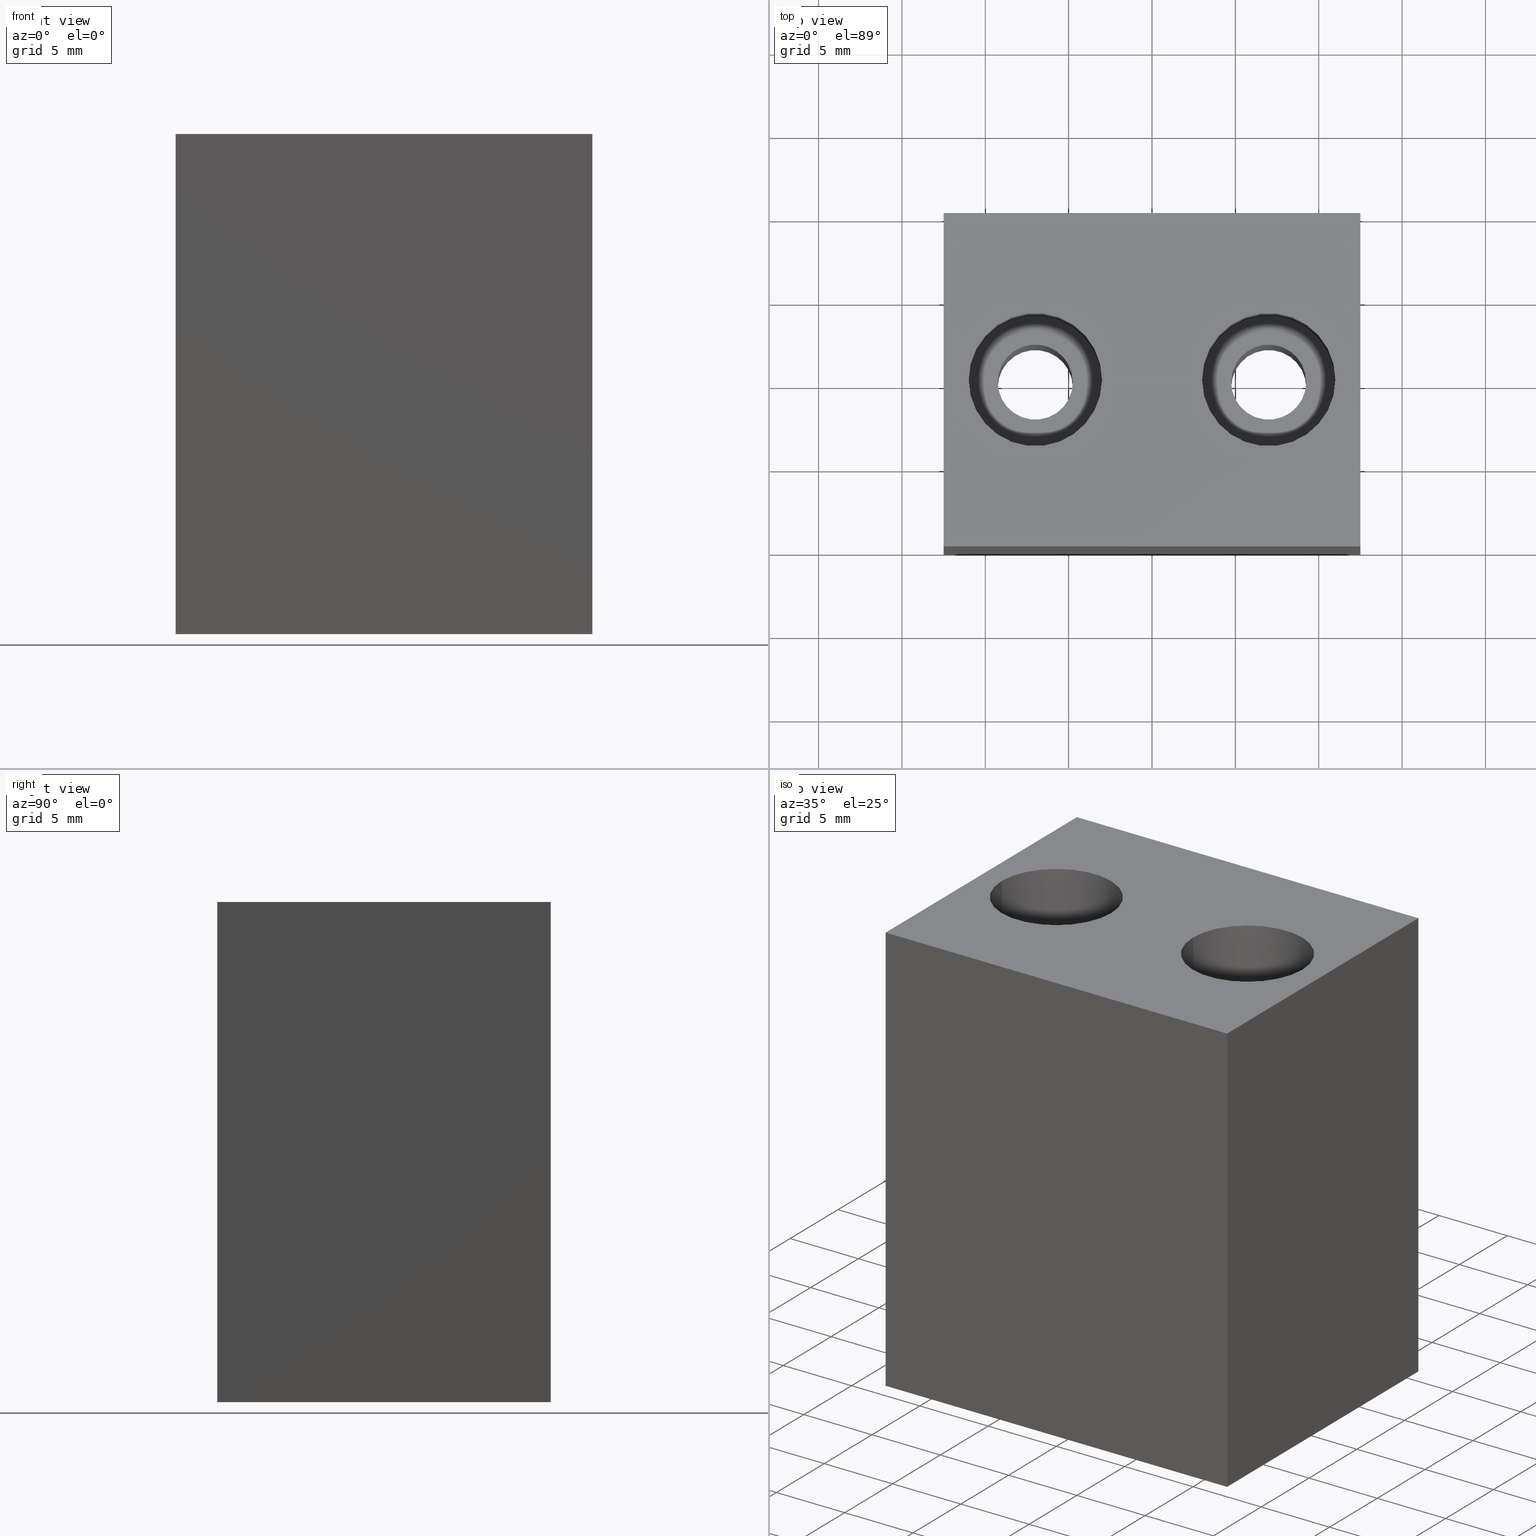
[diagram: canonical four-view strip — front | top / right | iso, engineering-drawing reading convention]
A machine part, canonical four-view strip (front | top / right | iso — engineering-drawing reading convention). The complete STEP part file that produces these views, byte-faithful:
ISO-10303-21;
HEADER;
/* Generated by software containing ST-Developer
 * from STEP Tools, Inc. (www.steptools.com) 
 */

FILE_DESCRIPTION(
/* description */ ('WKZ-0456'),
/* implementation_level */ '2;1');

FILE_NAME(
/* name */ 'E_3_02_14_00_00_WKZ-0456.stp',
/* time_stamp */ '2025-11-21T11:15:23+01:00',
/* author */ ('d.fischer'),
/* organization */ (''),
/* preprocessor_version */ 'ST-DEVELOPER v20',
/* originating_system */ 'Autodesk Inventor 2025',
/* authorisation */ '');

FILE_SCHEMA (('AUTOMOTIVE_DESIGN { 1 0 10303 214 3 1 1 }'));
ENDSEC;

DATA;
#10=MECHANICAL_DESIGN_GEOMETRIC_PRESENTATION_REPRESENTATION('',(#13),#450);
#11=SHAPE_REPRESENTATION_RELATIONSHIP('SRR','None',#457,#12);
#12=ADVANCED_BREP_SHAPE_REPRESENTATION('',(#14),#449);
#13=STYLED_ITEM('',(#466),#14);
#14=MANIFOLD_SOLID_BREP('Volumenk\X\F6rper1',#253);
#15=FACE_BOUND('',#51,.T.);
#16=FACE_BOUND('',#54,.T.);
#17=FACE_BOUND('',#57,.T.);
#18=FACE_BOUND('',#60,.T.);
#19=FACE_BOUND('',#68,.T.);
#20=FACE_BOUND('',#69,.T.);
#21=FACE_BOUND('',#71,.T.);
#22=FACE_BOUND('',#72,.T.);
#23=PLANE('',#279);
#24=PLANE('',#284);
#25=PLANE('',#289);
#26=PLANE('',#294);
#27=PLANE('',#298);
#28=PLANE('',#299);
#29=PLANE('',#300);
#30=PLANE('',#301);
#31=PLANE('',#302);
#32=PLANE('',#303);
#33=FACE_OUTER_BOUND('',#49,.T.);
#34=FACE_OUTER_BOUND('',#50,.T.);
#35=FACE_OUTER_BOUND('',#52,.T.);
#36=FACE_OUTER_BOUND('',#53,.T.);
#37=FACE_OUTER_BOUND('',#55,.T.);
#38=FACE_OUTER_BOUND('',#56,.T.);
#39=FACE_OUTER_BOUND('',#58,.T.);
#40=FACE_OUTER_BOUND('',#59,.T.);
#41=FACE_OUTER_BOUND('',#61,.T.);
#42=FACE_OUTER_BOUND('',#62,.T.);
#43=FACE_OUTER_BOUND('',#63,.T.);
#44=FACE_OUTER_BOUND('',#64,.T.);
#45=FACE_OUTER_BOUND('',#65,.T.);
#46=FACE_OUTER_BOUND('',#66,.T.);
#47=FACE_OUTER_BOUND('',#67,.T.);
#48=FACE_OUTER_BOUND('',#70,.T.);
#49=EDGE_LOOP('',(#171,#172,#173,#174));
#50=EDGE_LOOP('',(#175));
#51=EDGE_LOOP('',(#176));
#52=EDGE_LOOP('',(#177,#178,#179,#180));
#53=EDGE_LOOP('',(#181));
#54=EDGE_LOOP('',(#182));
#55=EDGE_LOOP('',(#183,#184,#185,#186));
#56=EDGE_LOOP('',(#187));
#57=EDGE_LOOP('',(#188));
#58=EDGE_LOOP('',(#189,#190,#191,#192));
#59=EDGE_LOOP('',(#193));
#60=EDGE_LOOP('',(#194));
#61=EDGE_LOOP('',(#195,#196,#197,#198));
#62=EDGE_LOOP('',(#199,#200,#201,#202));
#63=EDGE_LOOP('',(#203,#204,#205,#206));
#64=EDGE_LOOP('',(#207,#208,#209,#210));
#65=EDGE_LOOP('',(#211,#212,#213,#214));
#66=EDGE_LOOP('',(#215,#216,#217,#218));
#67=EDGE_LOOP('',(#219,#220,#221,#222));
#68=EDGE_LOOP('',(#223));
#69=EDGE_LOOP('',(#224));
#70=EDGE_LOOP('',(#225,#226,#227,#228));
#71=EDGE_LOOP('',(#229));
#72=EDGE_LOOP('',(#230));
#73=LINE('',#385,#91);
#74=LINE('',#394,#92);
#75=LINE('',#403,#93);
#76=LINE('',#412,#94);
#77=LINE('',#418,#95);
#78=LINE('',#420,#96);
#79=LINE('',#424,#97);
#80=LINE('',#426,#98);
#81=LINE('',#428,#99);
#82=LINE('',#429,#100);
#83=LINE('',#432,#101);
#84=LINE('',#434,#102);
#85=LINE('',#435,#103);
#86=LINE('',#438,#104);
#87=LINE('',#440,#105);
#88=LINE('',#441,#106);
#89=LINE('',#443,#107);
#90=LINE('',#444,#108);
#91=VECTOR('',#310,3.);
#92=VECTOR('',#321,3.);
#93=VECTOR('',#332,4.);
#94=VECTOR('',#343,4.);
#95=VECTOR('',#352,2.25);
#96=VECTOR('',#355,2.25);
#97=VECTOR('',#358,10.);
#98=VECTOR('',#359,10.);
#99=VECTOR('',#360,10.);
#100=VECTOR('',#361,10.);
#101=VECTOR('',#364,10.);
#102=VECTOR('',#365,10.);
#103=VECTOR('',#366,10.);
#104=VECTOR('',#369,10.);
#105=VECTOR('',#370,10.);
#106=VECTOR('',#371,10.);
#107=VECTOR('',#374,10.);
#108=VECTOR('',#375,10.);
#109=CIRCLE('',#277,3.);
#110=CIRCLE('',#278,3.);
#111=CIRCLE('',#280,2.25);
#112=CIRCLE('',#282,3.);
#113=CIRCLE('',#283,3.);
#114=CIRCLE('',#285,2.25);
#115=CIRCLE('',#287,4.);
#116=CIRCLE('',#288,4.);
#117=CIRCLE('',#290,2.25);
#118=CIRCLE('',#292,4.);
#119=CIRCLE('',#293,4.);
#120=CIRCLE('',#295,2.25);
#121=VERTEX_POINT('',#382);
#122=VERTEX_POINT('',#384);
#123=VERTEX_POINT('',#388);
#124=VERTEX_POINT('',#391);
#125=VERTEX_POINT('',#393);
#126=VERTEX_POINT('',#397);
#127=VERTEX_POINT('',#400);
#128=VERTEX_POINT('',#402);
#129=VERTEX_POINT('',#406);
#130=VERTEX_POINT('',#409);
#131=VERTEX_POINT('',#411);
#132=VERTEX_POINT('',#415);
#133=VERTEX_POINT('',#422);
#134=VERTEX_POINT('',#423);
#135=VERTEX_POINT('',#425);
#136=VERTEX_POINT('',#427);
#137=VERTEX_POINT('',#431);
#138=VERTEX_POINT('',#433);
#139=VERTEX_POINT('',#437);
#140=VERTEX_POINT('',#439);
#141=EDGE_CURVE('',#121,#121,#109,.T.);
#142=EDGE_CURVE('',#121,#122,#73,.T.);
#143=EDGE_CURVE('',#122,#122,#110,.T.);
#144=EDGE_CURVE('',#123,#123,#111,.T.);
#145=EDGE_CURVE('',#124,#124,#112,.T.);
#146=EDGE_CURVE('',#124,#125,#74,.T.);
#147=EDGE_CURVE('',#125,#125,#113,.T.);
#148=EDGE_CURVE('',#126,#126,#114,.T.);
#149=EDGE_CURVE('',#127,#127,#115,.T.);
#150=EDGE_CURVE('',#127,#128,#75,.T.);
#151=EDGE_CURVE('',#128,#128,#116,.T.);
#152=EDGE_CURVE('',#129,#129,#117,.T.);
#153=EDGE_CURVE('',#130,#130,#118,.T.);
#154=EDGE_CURVE('',#130,#131,#76,.T.);
#155=EDGE_CURVE('',#131,#131,#119,.T.);
#156=EDGE_CURVE('',#132,#132,#120,.T.);
#157=EDGE_CURVE('',#132,#123,#77,.T.);
#158=EDGE_CURVE('',#129,#126,#78,.T.);
#159=EDGE_CURVE('',#133,#134,#79,.T.);
#160=EDGE_CURVE('',#134,#135,#80,.T.);
#161=EDGE_CURVE('',#136,#135,#81,.T.);
#162=EDGE_CURVE('',#133,#136,#82,.T.);
#163=EDGE_CURVE('',#137,#133,#83,.T.);
#164=EDGE_CURVE('',#138,#136,#84,.T.);
#165=EDGE_CURVE('',#137,#138,#85,.T.);
#166=EDGE_CURVE('',#139,#137,#86,.T.);
#167=EDGE_CURVE('',#140,#138,#87,.T.);
#168=EDGE_CURVE('',#139,#140,#88,.T.);
#169=EDGE_CURVE('',#134,#139,#89,.T.);
#170=EDGE_CURVE('',#135,#140,#90,.T.);
#171=ORIENTED_EDGE('',*,*,#141,.F.);
#172=ORIENTED_EDGE('',*,*,#142,.T.);
#173=ORIENTED_EDGE('',*,*,#143,.F.);
#174=ORIENTED_EDGE('',*,*,#142,.F.);
#175=ORIENTED_EDGE('',*,*,#143,.T.);
#176=ORIENTED_EDGE('',*,*,#144,.F.);
#177=ORIENTED_EDGE('',*,*,#145,.F.);
#178=ORIENTED_EDGE('',*,*,#146,.T.);
#179=ORIENTED_EDGE('',*,*,#147,.F.);
#180=ORIENTED_EDGE('',*,*,#146,.F.);
#181=ORIENTED_EDGE('',*,*,#147,.T.);
#182=ORIENTED_EDGE('',*,*,#148,.F.);
#183=ORIENTED_EDGE('',*,*,#149,.F.);
#184=ORIENTED_EDGE('',*,*,#150,.T.);
#185=ORIENTED_EDGE('',*,*,#151,.F.);
#186=ORIENTED_EDGE('',*,*,#150,.F.);
#187=ORIENTED_EDGE('',*,*,#151,.T.);
#188=ORIENTED_EDGE('',*,*,#152,.F.);
#189=ORIENTED_EDGE('',*,*,#153,.F.);
#190=ORIENTED_EDGE('',*,*,#154,.T.);
#191=ORIENTED_EDGE('',*,*,#155,.F.);
#192=ORIENTED_EDGE('',*,*,#154,.F.);
#193=ORIENTED_EDGE('',*,*,#155,.T.);
#194=ORIENTED_EDGE('',*,*,#156,.F.);
#195=ORIENTED_EDGE('',*,*,#156,.T.);
#196=ORIENTED_EDGE('',*,*,#157,.T.);
#197=ORIENTED_EDGE('',*,*,#144,.T.);
#198=ORIENTED_EDGE('',*,*,#157,.F.);
#199=ORIENTED_EDGE('',*,*,#152,.T.);
#200=ORIENTED_EDGE('',*,*,#158,.T.);
#201=ORIENTED_EDGE('',*,*,#148,.T.);
#202=ORIENTED_EDGE('',*,*,#158,.F.);
#203=ORIENTED_EDGE('',*,*,#159,.T.);
#204=ORIENTED_EDGE('',*,*,#160,.T.);
#205=ORIENTED_EDGE('',*,*,#161,.F.);
#206=ORIENTED_EDGE('',*,*,#162,.F.);
#207=ORIENTED_EDGE('',*,*,#163,.T.);
#208=ORIENTED_EDGE('',*,*,#162,.T.);
#209=ORIENTED_EDGE('',*,*,#164,.F.);
#210=ORIENTED_EDGE('',*,*,#165,.F.);
#211=ORIENTED_EDGE('',*,*,#166,.T.);
#212=ORIENTED_EDGE('',*,*,#165,.T.);
#213=ORIENTED_EDGE('',*,*,#167,.F.);
#214=ORIENTED_EDGE('',*,*,#168,.F.);
#215=ORIENTED_EDGE('',*,*,#169,.T.);
#216=ORIENTED_EDGE('',*,*,#168,.T.);
#217=ORIENTED_EDGE('',*,*,#170,.F.);
#218=ORIENTED_EDGE('',*,*,#160,.F.);
#219=ORIENTED_EDGE('',*,*,#170,.T.);
#220=ORIENTED_EDGE('',*,*,#167,.T.);
#221=ORIENTED_EDGE('',*,*,#164,.T.);
#222=ORIENTED_EDGE('',*,*,#161,.T.);
#223=ORIENTED_EDGE('',*,*,#149,.T.);
#224=ORIENTED_EDGE('',*,*,#153,.T.);
#225=ORIENTED_EDGE('',*,*,#169,.F.);
#226=ORIENTED_EDGE('',*,*,#159,.F.);
#227=ORIENTED_EDGE('',*,*,#163,.F.);
#228=ORIENTED_EDGE('',*,*,#166,.F.);
#229=ORIENTED_EDGE('',*,*,#141,.T.);
#230=ORIENTED_EDGE('',*,*,#145,.T.);
#231=CYLINDRICAL_SURFACE('',#276,3.);
#232=CYLINDRICAL_SURFACE('',#281,3.);
#233=CYLINDRICAL_SURFACE('',#286,4.);
#234=CYLINDRICAL_SURFACE('',#291,4.);
#235=CYLINDRICAL_SURFACE('',#296,2.25);
#236=CYLINDRICAL_SURFACE('',#297,2.25);
#237=ADVANCED_FACE('',(#33),#231,.F.);
#238=ADVANCED_FACE('',(#34,#15),#23,.T.);
#239=ADVANCED_FACE('',(#35),#232,.F.);
#240=ADVANCED_FACE('',(#36,#16),#24,.T.);
#241=ADVANCED_FACE('',(#37),#233,.F.);
#242=ADVANCED_FACE('',(#38,#17),#25,.T.);
#243=ADVANCED_FACE('',(#39),#234,.F.);
#244=ADVANCED_FACE('',(#40,#18),#26,.T.);
#245=ADVANCED_FACE('',(#41),#235,.F.);
#246=ADVANCED_FACE('',(#42),#236,.F.);
#247=ADVANCED_FACE('',(#43),#27,.T.);
#248=ADVANCED_FACE('',(#44),#28,.T.);
#249=ADVANCED_FACE('',(#45),#29,.T.);
#250=ADVANCED_FACE('',(#46),#30,.T.);
#251=ADVANCED_FACE('',(#47,#19,#20),#31,.T.);
#252=ADVANCED_FACE('',(#48,#21,#22),#32,.F.);
#253=CLOSED_SHELL('',(#237,#238,#239,#240,#241,#242,#243,#244,#245,#246,
#247,#248,#249,#250,#251,#252));
#254=DERIVED_UNIT_ELEMENT(#257,1.);
#255=DERIVED_UNIT_ELEMENT(#452,-3.);
#256=DIMENSIONAL_EXPONENTS(0.,1.,0.,0.,0.,0.,0.);
#257=(
CONVERSION_BASED_UNIT('gram',#259)
MASS_UNIT()
NAMED_UNIT(#256)
);
#258=(
MASS_UNIT()
NAMED_UNIT(*)
SI_UNIT(.KILO.,.GRAM.)
);
#259=MASS_MEASURE_WITH_UNIT(MASS_MEASURE(0.001),#258);
#260=DERIVED_UNIT((#254,#255));
#261=MEASURE_REPRESENTATION_ITEM('density measure',
POSITIVE_RATIO_MEASURE(1.),#260);
#262=PROPERTY_DEFINITION_REPRESENTATION(#267,#264);
#263=PROPERTY_DEFINITION_REPRESENTATION(#268,#265);
#264=REPRESENTATION('material name',(#266),#449);
#265=REPRESENTATION('density',(#261),#449);
#266=DESCRIPTIVE_REPRESENTATION_ITEM('Generisch','Generisch');
#267=PROPERTY_DEFINITION('material property','material name',#459);
#268=PROPERTY_DEFINITION('material property','density of part',#459);
#269=DATE_TIME_ROLE('creation_date');
#270=APPLIED_DATE_AND_TIME_ASSIGNMENT(#271,#269,(#459));
#271=DATE_AND_TIME(#272,#273);
#272=CALENDAR_DATE(2023,12,12);
#273=LOCAL_TIME(0,0,0.,#274);
#274=COORDINATED_UNIVERSAL_TIME_OFFSET(0,0,.BEHIND.);
#275=AXIS2_PLACEMENT_3D('',#380,#304,#305);
#276=AXIS2_PLACEMENT_3D('',#381,#306,#307);
#277=AXIS2_PLACEMENT_3D('',#383,#308,#309);
#278=AXIS2_PLACEMENT_3D('',#386,#311,#312);
#279=AXIS2_PLACEMENT_3D('',#387,#313,#314);
#280=AXIS2_PLACEMENT_3D('',#389,#315,#316);
#281=AXIS2_PLACEMENT_3D('',#390,#317,#318);
#282=AXIS2_PLACEMENT_3D('',#392,#319,#320);
#283=AXIS2_PLACEMENT_3D('',#395,#322,#323);
#284=AXIS2_PLACEMENT_3D('',#396,#324,#325);
#285=AXIS2_PLACEMENT_3D('',#398,#326,#327);
#286=AXIS2_PLACEMENT_3D('',#399,#328,#329);
#287=AXIS2_PLACEMENT_3D('',#401,#330,#331);
#288=AXIS2_PLACEMENT_3D('',#404,#333,#334);
#289=AXIS2_PLACEMENT_3D('',#405,#335,#336);
#290=AXIS2_PLACEMENT_3D('',#407,#337,#338);
#291=AXIS2_PLACEMENT_3D('',#408,#339,#340);
#292=AXIS2_PLACEMENT_3D('',#410,#341,#342);
#293=AXIS2_PLACEMENT_3D('',#413,#344,#345);
#294=AXIS2_PLACEMENT_3D('',#414,#346,#347);
#295=AXIS2_PLACEMENT_3D('',#416,#348,#349);
#296=AXIS2_PLACEMENT_3D('',#417,#350,#351);
#297=AXIS2_PLACEMENT_3D('',#419,#353,#354);
#298=AXIS2_PLACEMENT_3D('',#421,#356,#357);
#299=AXIS2_PLACEMENT_3D('',#430,#362,#363);
#300=AXIS2_PLACEMENT_3D('',#436,#367,#368);
#301=AXIS2_PLACEMENT_3D('',#442,#372,#373);
#302=AXIS2_PLACEMENT_3D('',#445,#376,#377);
#303=AXIS2_PLACEMENT_3D('',#446,#378,#379);
#304=DIRECTION('axis',(0.,0.,1.));
#305=DIRECTION('refdir',(1.,0.,0.));
#306=DIRECTION('center_axis',(0.,0.,-1.));
#307=DIRECTION('ref_axis',(-1.,0.,0.));
#308=DIRECTION('center_axis',(0.,0.,1.));
#309=DIRECTION('ref_axis',(-1.,0.,0.));
#310=DIRECTION('',(0.,0.,1.));
#311=DIRECTION('center_axis',(0.,0.,-1.));
#312=DIRECTION('ref_axis',(-1.,0.,0.));
#313=DIRECTION('center_axis',(0.,0.,-1.));
#314=DIRECTION('ref_axis',(-1.,0.,0.));
#315=DIRECTION('center_axis',(0.,0.,-1.));
#316=DIRECTION('ref_axis',(1.,0.,0.));
#317=DIRECTION('center_axis',(0.,0.,-1.));
#318=DIRECTION('ref_axis',(-1.,0.,0.));
#319=DIRECTION('center_axis',(0.,0.,1.));
#320=DIRECTION('ref_axis',(-1.,0.,0.));
#321=DIRECTION('',(0.,0.,1.));
#322=DIRECTION('center_axis',(0.,0.,-1.));
#323=DIRECTION('ref_axis',(-1.,0.,0.));
#324=DIRECTION('center_axis',(0.,0.,-1.));
#325=DIRECTION('ref_axis',(-1.,0.,0.));
#326=DIRECTION('center_axis',(0.,0.,-1.));
#327=DIRECTION('ref_axis',(1.,0.,0.));
#328=DIRECTION('center_axis',(0.,0.,1.));
#329=DIRECTION('ref_axis',(1.,0.,0.));
#330=DIRECTION('center_axis',(0.,0.,-1.));
#331=DIRECTION('ref_axis',(1.,0.,0.));
#332=DIRECTION('',(0.,0.,-1.));
#333=DIRECTION('center_axis',(0.,0.,1.));
#334=DIRECTION('ref_axis',(1.,0.,0.));
#335=DIRECTION('center_axis',(0.,0.,1.));
#336=DIRECTION('ref_axis',(1.,0.,0.));
#337=DIRECTION('center_axis',(0.,0.,1.));
#338=DIRECTION('ref_axis',(1.,0.,0.));
#339=DIRECTION('center_axis',(0.,0.,1.));
#340=DIRECTION('ref_axis',(1.,0.,0.));
#341=DIRECTION('center_axis',(0.,0.,-1.));
#342=DIRECTION('ref_axis',(1.,0.,0.));
#343=DIRECTION('',(0.,0.,-1.));
#344=DIRECTION('center_axis',(0.,0.,1.));
#345=DIRECTION('ref_axis',(1.,0.,0.));
#346=DIRECTION('center_axis',(0.,0.,1.));
#347=DIRECTION('ref_axis',(1.,0.,0.));
#348=DIRECTION('center_axis',(0.,0.,1.));
#349=DIRECTION('ref_axis',(1.,0.,0.));
#350=DIRECTION('center_axis',(0.,0.,1.));
#351=DIRECTION('ref_axis',(1.,0.,0.));
#352=DIRECTION('',(0.,0.,-1.));
#353=DIRECTION('center_axis',(0.,0.,1.));
#354=DIRECTION('ref_axis',(1.,0.,0.));
#355=DIRECTION('',(0.,0.,-1.));
#356=DIRECTION('center_axis',(4.44089209850063E-17,-1.,0.));
#357=DIRECTION('ref_axis',(1.,4.44089209850063E-17,0.));
#358=DIRECTION('',(1.,4.44089209850063E-17,0.));
#359=DIRECTION('',(0.,0.,1.));
#360=DIRECTION('',(1.,4.44089209850063E-17,0.));
#361=DIRECTION('',(0.,0.,1.));
#362=DIRECTION('center_axis',(-1.,-3.33066907387547E-16,0.));
#363=DIRECTION('ref_axis',(3.33066907387547E-16,-1.,0.));
#364=DIRECTION('',(3.33066907387547E-16,-1.,0.));
#365=DIRECTION('',(3.33066907387547E-16,-1.,0.));
#366=DIRECTION('',(0.,0.,1.));
#367=DIRECTION('center_axis',(1.77635683940025E-16,1.,0.));
#368=DIRECTION('ref_axis',(-1.,1.77635683940025E-16,0.));
#369=DIRECTION('',(-1.,1.77635683940025E-16,0.));
#370=DIRECTION('',(-1.,1.77635683940025E-16,0.));
#371=DIRECTION('',(0.,0.,1.));
#372=DIRECTION('center_axis',(1.,2.22044604925031E-16,0.));
#373=DIRECTION('ref_axis',(-2.22044604925031E-16,1.,0.));
#374=DIRECTION('',(-2.22044604925031E-16,1.,0.));
#375=DIRECTION('',(-2.22044604925031E-16,1.,0.));
#376=DIRECTION('center_axis',(0.,0.,1.));
#377=DIRECTION('ref_axis',(1.,0.,0.));
#378=DIRECTION('center_axis',(0.,0.,1.));
#379=DIRECTION('ref_axis',(1.,0.,0.));
#380=CARTESIAN_POINT('',(0.,0.,0.));
#381=CARTESIAN_POINT('Origin',(-7.,-8.86231387054631E-16,1.3));
#382=CARTESIAN_POINT('',(-4.,-1.25362542679884E-15,0.));
#383=CARTESIAN_POINT('Origin',(-7.,-8.86231387054631E-16,0.));
#384=CARTESIAN_POINT('',(-4.,-1.25362542679884E-15,2.6));
#385=CARTESIAN_POINT('',(-4.,-1.25362542679884E-15,1.3));
#386=CARTESIAN_POINT('Origin',(-7.,-8.86231387054631E-16,2.6));
#387=CARTESIAN_POINT('Origin',(-7.,-8.86231387054631E-16,2.6));
#388=CARTESIAN_POINT('',(-9.25,-6.10685857246476E-16,2.6));
#389=CARTESIAN_POINT('Origin',(-7.,-8.86231387054631E-16,2.6));
#390=CARTESIAN_POINT('Origin',(7.,5.33101755084625E-15,1.3));
#391=CARTESIAN_POINT('',(10.,4.96362351110204E-15,0.));
#392=CARTESIAN_POINT('Origin',(7.,5.33101755084625E-15,0.));
#393=CARTESIAN_POINT('',(10.,4.96362351110204E-15,2.6));
#394=CARTESIAN_POINT('',(10.,4.96362351110204E-15,1.3));
#395=CARTESIAN_POINT('Origin',(7.,5.33101755084625E-15,2.6));
#396=CARTESIAN_POINT('Origin',(7.,5.33101755084625E-15,2.6));
#397=CARTESIAN_POINT('',(4.75,5.6065630806544E-15,2.6));
#398=CARTESIAN_POINT('Origin',(7.,5.33101755084625E-15,2.6));
#399=CARTESIAN_POINT('Origin',(7.,5.33101755084625E-15,25.75));
#400=CARTESIAN_POINT('',(3.,4.84115883118731E-15,30.));
#401=CARTESIAN_POINT('Origin',(7.,5.33101755084625E-15,30.));
#402=CARTESIAN_POINT('',(3.,4.84115883118731E-15,21.5));
#403=CARTESIAN_POINT('',(3.,4.84115883118731E-15,25.75));
#404=CARTESIAN_POINT('Origin',(7.,5.33101755084625E-15,21.5));
#405=CARTESIAN_POINT('Origin',(7.,5.33101755084625E-15,21.5));
#406=CARTESIAN_POINT('',(4.75,5.05547202103809E-15,21.5));
#407=CARTESIAN_POINT('Origin',(7.,5.33101755084625E-15,21.5));
#408=CARTESIAN_POINT('Origin',(-7.,-8.86231387054631E-16,25.75));
#409=CARTESIAN_POINT('',(-11.,-1.37609010671357E-15,30.));
#410=CARTESIAN_POINT('Origin',(-7.,-8.86231387054631E-16,30.));
#411=CARTESIAN_POINT('',(-11.,-1.37609010671357E-15,21.5));
#412=CARTESIAN_POINT('',(-11.,-1.37609010671357E-15,25.75));
#413=CARTESIAN_POINT('Origin',(-7.,-8.86231387054631E-16,21.5));
#414=CARTESIAN_POINT('Origin',(-7.,-8.86231387054631E-16,21.5));
#415=CARTESIAN_POINT('',(-9.25,-1.16177691686279E-15,21.5));
#416=CARTESIAN_POINT('Origin',(-7.,-8.86231387054631E-16,21.5));
#417=CARTESIAN_POINT('Origin',(-7.,-8.86231387054631E-16,-13.8748219369606));
#418=CARTESIAN_POINT('',(-9.25,-1.16177691686279E-15,-13.8748219369606));
#419=CARTESIAN_POINT('Origin',(7.,5.33101755084625E-15,-13.8748219369606));
#420=CARTESIAN_POINT('',(4.75,5.05547202103809E-15,-13.8748219369606));
#421=CARTESIAN_POINT('Origin',(-12.5,-10.,0.));
#422=CARTESIAN_POINT('',(-12.5,-10.,0.));
#423=CARTESIAN_POINT('',(12.5,-10.,0.));
#424=CARTESIAN_POINT('',(-12.5,-10.,0.));
#425=CARTESIAN_POINT('',(12.5,-10.,30.));
#426=CARTESIAN_POINT('',(12.5,-10.,0.));
#427=CARTESIAN_POINT('',(-12.5,-10.,30.));
#428=CARTESIAN_POINT('',(-12.5,-10.,30.));
#429=CARTESIAN_POINT('',(-12.5,-10.,0.));
#430=CARTESIAN_POINT('Origin',(-12.5,10.,0.));
#431=CARTESIAN_POINT('',(-12.5,10.,0.));
#432=CARTESIAN_POINT('',(-12.5,10.,0.));
#433=CARTESIAN_POINT('',(-12.5,10.,30.));
#434=CARTESIAN_POINT('',(-12.5,10.,30.));
#435=CARTESIAN_POINT('',(-12.5,10.,0.));
#436=CARTESIAN_POINT('Origin',(12.5,10.,0.));
#437=CARTESIAN_POINT('',(12.5,10.,0.));
#438=CARTESIAN_POINT('',(12.5,10.,0.));
#439=CARTESIAN_POINT('',(12.5,10.,30.));
#440=CARTESIAN_POINT('',(12.5,10.,30.));
#441=CARTESIAN_POINT('',(12.5,10.,0.));
#442=CARTESIAN_POINT('Origin',(12.5,-10.,0.));
#443=CARTESIAN_POINT('',(12.5,-10.,0.));
#444=CARTESIAN_POINT('',(12.5,-10.,30.));
#445=CARTESIAN_POINT('Origin',(-1.11022302462516E-15,4.44089209850063E-15,
30.));
#446=CARTESIAN_POINT('Origin',(-1.11022302462516E-15,4.44089209850063E-15,
0.));
#447=UNCERTAINTY_MEASURE_WITH_UNIT(LENGTH_MEASURE(0.01),#451,
'DISTANCE_ACCURACY_VALUE',
'Maximum model space distance between geometric entities at asserted c
onnectivities');
#448=UNCERTAINTY_MEASURE_WITH_UNIT(LENGTH_MEASURE(0.01),#451,
'DISTANCE_ACCURACY_VALUE',
'Maximum model space distance between geometric entities at asserted c
onnectivities');
#449=(
GEOMETRIC_REPRESENTATION_CONTEXT(3)
GLOBAL_UNCERTAINTY_ASSIGNED_CONTEXT((#447))
GLOBAL_UNIT_ASSIGNED_CONTEXT((#451,#453,#454))
REPRESENTATION_CONTEXT('','3D')
);
#450=(
GEOMETRIC_REPRESENTATION_CONTEXT(3)
GLOBAL_UNCERTAINTY_ASSIGNED_CONTEXT((#448))
GLOBAL_UNIT_ASSIGNED_CONTEXT((#451,#453,#454))
REPRESENTATION_CONTEXT('','3D')
);
#451=(
LENGTH_UNIT()
NAMED_UNIT(*)
SI_UNIT(.MILLI.,.METRE.)
);
#452=(
LENGTH_UNIT()
NAMED_UNIT(*)
SI_UNIT(.CENTI.,.METRE.)
);
#453=(
NAMED_UNIT(*)
PLANE_ANGLE_UNIT()
SI_UNIT($,.RADIAN.)
);
#454=(
NAMED_UNIT(*)
SI_UNIT($,.STERADIAN.)
SOLID_ANGLE_UNIT()
);
#455=SHAPE_DEFINITION_REPRESENTATION(#456,#457);
#456=PRODUCT_DEFINITION_SHAPE('',$,#459);
#457=SHAPE_REPRESENTATION('',(#275),#449);
#458=PRODUCT_DEFINITION_CONTEXT('part definition',#463,'design');
#459=PRODUCT_DEFINITION('E_3_02_14_00_00_WKZ-0456',
'E_3_02_14_00_00_WKZ-0456',#460,#458);
#460=PRODUCT_DEFINITION_FORMATION('',$,#465);
#461=PRODUCT_RELATED_PRODUCT_CATEGORY('E_3_02_14_00_00_WKZ-0456',
'E_3_02_14_00_00_WKZ-0456',(#465));
#462=APPLICATION_PROTOCOL_DEFINITION('international standard',
'automotive_design',2009,#463);
#463=APPLICATION_CONTEXT(
'Core Data for Automotive Mechanical Design Process');
#464=PRODUCT_CONTEXT('part definition',#463,'mechanical');
#465=PRODUCT('E_3_02_14_00_00_WKZ-0456','E_3_02_14_00_00_WKZ-0456',
'WKZ-0456',(#464));
#466=PRESENTATION_STYLE_ASSIGNMENT((#467));
#467=SURFACE_STYLE_USAGE(.BOTH.,#470);
#468=SURFACE_STYLE_RENDERING_WITH_PROPERTIES($,#474,(#469));
#469=SURFACE_STYLE_TRANSPARENT(0.);
#470=SURFACE_SIDE_STYLE('',(#471,#468));
#471=SURFACE_STYLE_FILL_AREA(#472);
#472=FILL_AREA_STYLE('',(#473));
#473=FILL_AREA_STYLE_COLOUR('',#474);
#474=COLOUR_RGB('',0.749019607843137,0.749019607843137,0.749019607843137);
ENDSEC;
END-ISO-10303-21;
